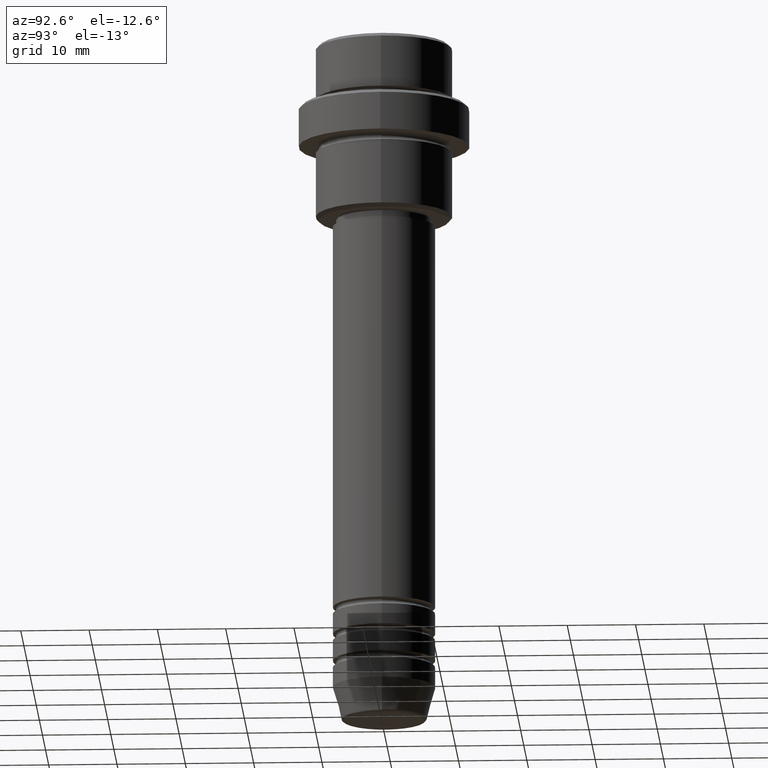
[diagram: clean part render]
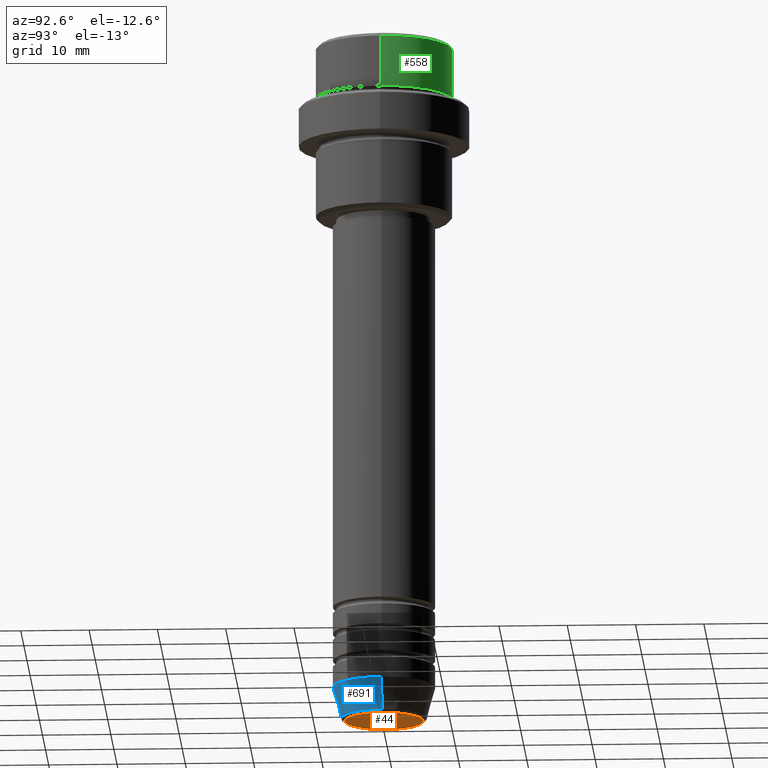
[diagram: same view with three faces highlighted in distinct colors, each labeled with its STEP entity id]
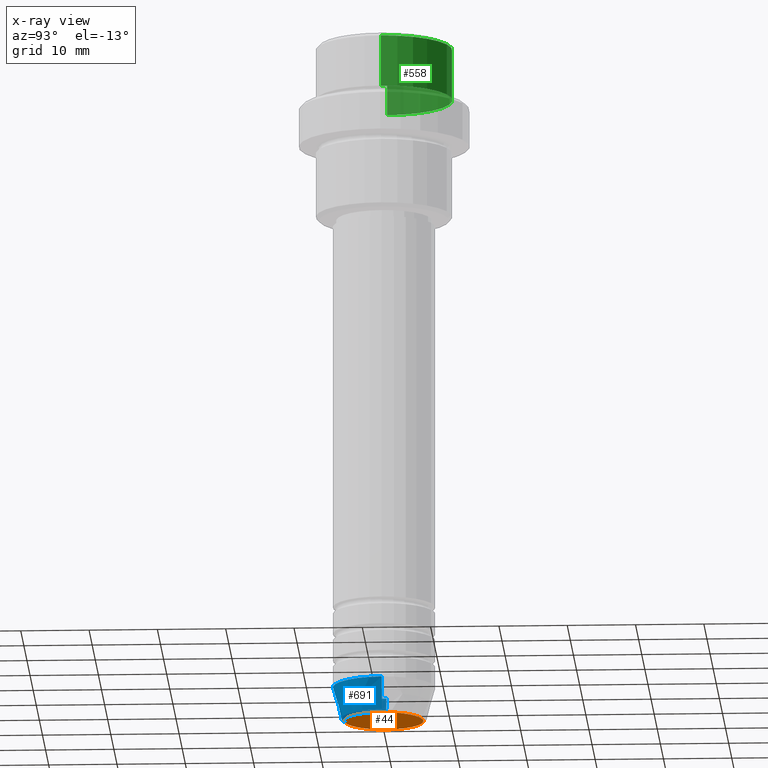
[diagram: x-ray of the same camera — body ghosted, the three highlighted faces saturated]
A machine part, auxiliary view with three faces highlighted in distinct colors.
The next image is the same camera in x-ray (body ghosted, the three faces saturated) — at least one of them is partly hidden behind the body in this view.
Their STEP definitions:

[orange] entity #44 — the highlighted planar face has unit normal (0, -0, 1).
#6 = FACE_OUTER_BOUND ( 'NONE', #1340, .T. ) ;
#44 = ADVANCED_FACE ( 'NONE', ( #6 ), #1151, .F. ) ;
#48 = CIRCLE ( 'NONE', #228, 5.776590543854901227 ) ;
#57 = DIRECTION ( 'NONE',  ( 0.000000000000000000, -0.000000000000000000, 1.000000000000000000 ) ) ;
#83 = VERTEX_POINT ( 'NONE', #1252 ) ;
#90 = AXIS2_PLACEMENT_3D ( 'NONE', #781, #564, #750 ) ;
#228 = AXIS2_PLACEMENT_3D ( 'NONE', #603, #1034, #928 ) ;
#376 = CARTESIAN_POINT ( 'NONE',  ( 0.000000000000000000, 0.000000000000000000, -101.0000000000000000 ) ) ;
#429 = AXIS2_PLACEMENT_3D ( 'NONE', #376, #57, #583 ) ;
#541 = VERTEX_POINT ( 'NONE', #581 ) ;
#564 = DIRECTION ( 'NONE',  ( 0.000000000000000000, 0.000000000000000000, -1.000000000000000000 ) ) ;
#581 = CARTESIAN_POINT ( 'NONE',  ( -5.776590543854901227, 7.370012612361440670E-16, -101.0000000000000000 ) ) ;
#583 = DIRECTION ( 'NONE',  ( 1.000000000000000000, 0.000000000000000000, 0.000000000000000000 ) ) ;
#591 = EDGE_CURVE ( 'NONE', #541, #83, #48, .T. ) ;
#603 = CARTESIAN_POINT ( 'NONE',  ( 0.000000000000000000, 0.000000000000000000, -101.0000000000000000 ) ) ;
#750 = DIRECTION ( 'NONE',  ( 1.000000000000000000, 0.000000000000000000, 0.000000000000000000 ) ) ;
#781 = CARTESIAN_POINT ( 'NONE',  ( 0.000000000000000000, 0.000000000000000000, -101.0000000000000000 ) ) ;
#883 = EDGE_CURVE ( 'NONE', #83, #541, #1255, .T. ) ;
#928 = DIRECTION ( 'NONE',  ( 1.000000000000000000, 0.000000000000000000, 0.000000000000000000 ) ) ;
#951 = ORIENTED_EDGE ( 'NONE', *, *, #591, .T. ) ;
#1034 = DIRECTION ( 'NONE',  ( 0.000000000000000000, 0.000000000000000000, -1.000000000000000000 ) ) ;
#1151 = PLANE ( 'NONE',  #429 ) ;
#1247 = ORIENTED_EDGE ( 'NONE', *, *, #883, .T. ) ;
#1252 = CARTESIAN_POINT ( 'NONE',  ( 5.776590543854901227, 0.000000000000000000, -101.0000000000000000 ) ) ;
#1255 = CIRCLE ( 'NONE', #90, 5.776590543854901227 ) ;
#1340 = EDGE_LOOP ( 'NONE', ( #1247, #951 ) ) ;

[blue] entity #691 — the highlighted conical surface has half-angle 15 deg.
#81 = CARTESIAN_POINT ( 'NONE',  ( 0.000000000000000000, 0.000000000000000000, -96.00000000000000000 ) ) ;
#119 = DIRECTION ( 'NONE',  ( 1.000000000000000000, 0.000000000000000000, 0.000000000000000000 ) ) ;
#197 = VERTEX_POINT ( 'NONE', #839 ) ;
#220 = DIRECTION ( 'NONE',  ( 1.000000000000000000, 0.000000000000000000, 0.000000000000000000 ) ) ;
#230 = DIRECTION ( 'NONE',  ( -0.2588190451025213501, 3.169619151431772337E-17, 0.9659258262890680902 ) ) ;
#242 = EDGE_CURVE ( 'NONE', #1056, #650, #859, .T. ) ;
#273 = VERTEX_POINT ( 'NONE', #635 ) ;
#275 = CIRCLE ( 'NONE', #679, 7.500000000000000000 ) ;
#316 = DIRECTION ( 'NONE',  ( 0.2588190451025213501, 0.000000000000000000, 0.9659258262890680902 ) ) ;
#393 = AXIS2_PLACEMENT_3D ( 'NONE', #432, #867, #220 ) ;
#408 = DIRECTION ( 'NONE',  ( -0.000000000000000000, -0.000000000000000000, 1.000000000000000000 ) ) ;
#432 = CARTESIAN_POINT ( 'NONE',  ( 0.000000000000000000, 0.000000000000000000, -100.6294095225512706 ) ) ;
#444 = EDGE_CURVE ( 'NONE', #197, #650, #275, .T. ) ;
#473 = ORIENTED_EDGE ( 'NONE', *, *, #444, .F. ) ;
#528 = CIRCLE ( 'NONE', #393, 6.259553456999438659 ) ;
#530 = LINE ( 'NONE', #553, #1301 ) ;
#553 = CARTESIAN_POINT ( 'NONE',  ( -7.500000000000000000, 9.184850993605147944E-16, -96.00000000000000000 ) ) ;
#612 = ORIENTED_EDGE ( 'NONE', *, *, #1190, .T. ) ;
#625 = ORIENTED_EDGE ( 'NONE', *, *, #747, .F. ) ;
#635 = CARTESIAN_POINT ( 'NONE',  ( -6.259553456999439547, 8.425296549405630472E-16, -100.6294095225512706 ) ) ;
#650 = VERTEX_POINT ( 'NONE', #937 ) ;
#652 = CARTESIAN_POINT ( 'NONE',  ( 0.000000000000000000, 0.000000000000000000, -96.00000000000000000 ) ) ;
#679 = AXIS2_PLACEMENT_3D ( 'NONE', #652, #1198, #119 ) ;
#691 = ADVANCED_FACE ( 'NONE', ( #1053 ), #977, .T. ) ;
#747 = EDGE_CURVE ( 'NONE', #273, #197, #530, .T. ) ;
#755 = EDGE_LOOP ( 'NONE', ( #625, #612, #1402, #473 ) ) ;
#839 = CARTESIAN_POINT ( 'NONE',  ( -7.500000000000000000, 9.184850993605147944E-16, -96.00000000000000000 ) ) ;
#847 = AXIS2_PLACEMENT_3D ( 'NONE', #81, #408, #1283 ) ;
#859 = LINE ( 'NONE', #944, #931 ) ;
#867 = DIRECTION ( 'NONE',  ( -0.000000000000000000, -0.000000000000000000, 1.000000000000000000 ) ) ;
#931 = VECTOR ( 'NONE', #316, 1000.000000000000000 ) ;
#937 = CARTESIAN_POINT ( 'NONE',  ( 7.500000000000000000, 0.000000000000000000, -96.00000000000000000 ) ) ;
#944 = CARTESIAN_POINT ( 'NONE',  ( 7.500000000000000000, 0.000000000000000000, -96.00000000000000000 ) ) ;
#977 = CONICAL_SURFACE ( 'NONE', #847, 7.500000000000000000, 0.2617993877991500740 ) ;
#1053 = FACE_OUTER_BOUND ( 'NONE', #755, .T. ) ;
#1056 = VERTEX_POINT ( 'NONE', #1307 ) ;
#1190 = EDGE_CURVE ( 'NONE', #273, #1056, #528, .T. ) ;
#1198 = DIRECTION ( 'NONE',  ( -0.000000000000000000, -0.000000000000000000, 1.000000000000000000 ) ) ;
#1283 = DIRECTION ( 'NONE',  ( 1.000000000000000000, 0.000000000000000000, 0.000000000000000000 ) ) ;
#1301 = VECTOR ( 'NONE', #230, 1000.000000000000000 ) ;
#1307 = CARTESIAN_POINT ( 'NONE',  ( 6.259553456999438659, 0.000000000000000000, -100.6294095225512706 ) ) ;
#1402 = ORIENTED_EDGE ( 'NONE', *, *, #242, .T. ) ;

[green] entity #558 — the highlighted cylindrical surface (partial cylindrical patch) has radius 10 mm, axis along (-0, -0, 1).
#2 = DIRECTION ( 'NONE',  ( 1.000000000000000000, 0.000000000000000000, 0.000000000000000000 ) ) ;
#4 = VECTOR ( 'NONE', #485, 1000.000000000000000 ) ;
#61 = FACE_OUTER_BOUND ( 'NONE', #868, .T. ) ;
#78 = LINE ( 'NONE', #518, #1135 ) ;
#97 = VERTEX_POINT ( 'NONE', #599 ) ;
#109 = EDGE_CURVE ( 'NONE', #851, #515, #1348, .T. ) ;
#123 = DIRECTION ( 'NONE',  ( 0.000000000000000000, 0.000000000000000000, -1.000000000000000000 ) ) ;
#140 = DIRECTION ( 'NONE',  ( 1.000000000000000000, 0.000000000000000000, 0.000000000000000000 ) ) ;
#177 = CARTESIAN_POINT ( 'NONE',  ( 0.000000000000000000, 0.000000000000000000, -7.999999999999998224 ) ) ;
#198 = EDGE_CURVE ( 'NONE', #515, #492, #78, .T. ) ;
#310 = ORIENTED_EDGE ( 'NONE', *, *, #843, .T. ) ;
#369 = AXIS2_PLACEMENT_3D ( 'NONE', #494, #1364, #140 ) ;
#387 = DIRECTION ( 'NONE',  ( 1.000000000000000000, 0.000000000000000000, 0.000000000000000000 ) ) ;
#427 = CARTESIAN_POINT ( 'NONE',  ( 0.000000000000000000, 0.000000000000000000, -0.4999999999999970024 ) ) ;
#449 = ORIENTED_EDGE ( 'NONE', *, *, #109, .T. ) ;
#483 = CARTESIAN_POINT ( 'NONE',  ( -9.999999999999998224, 1.224646799147353059E-15, -0.4999999999999970024 ) ) ;
#485 = DIRECTION ( 'NONE',  ( -0.000000000000000000, -0.000000000000000000, 1.000000000000000000 ) ) ;
#486 = DIRECTION ( 'NONE',  ( -0.000000000000000000, -0.000000000000000000, 1.000000000000000000 ) ) ;
#492 = VERTEX_POINT ( 'NONE', #483 ) ;
#494 = CARTESIAN_POINT ( 'NONE',  ( 0.000000000000000000, 0.000000000000000000, 0.000000000000000000 ) ) ;
#515 = VERTEX_POINT ( 'NONE', #1119 ) ;
#518 = CARTESIAN_POINT ( 'NONE',  ( -9.999999999999998224, 1.224646799147353059E-15, 0.000000000000000000 ) ) ;
#526 = AXIS2_PLACEMENT_3D ( 'NONE', #427, #123, #2 ) ;
#558 = ADVANCED_FACE ( 'NONE', ( #61 ), #1020, .T. ) ;
#559 = CARTESIAN_POINT ( 'NONE',  ( 9.999999999999998224, 0.000000000000000000, -7.999999999999998224 ) ) ;
#599 = CARTESIAN_POINT ( 'NONE',  ( 9.999999999999998224, 0.000000000000000000, -0.4999999999999970024 ) ) ;
#624 = DIRECTION ( 'NONE',  ( -0.000000000000000000, -0.000000000000000000, 1.000000000000000000 ) ) ;
#778 = CIRCLE ( 'NONE', #526, 9.999999999999998224 ) ;
#796 = CARTESIAN_POINT ( 'NONE',  ( 9.999999999999998224, 0.000000000000000000, 0.000000000000000000 ) ) ;
#843 = EDGE_CURVE ( 'NONE', #492, #97, #778, .T. ) ;
#851 = VERTEX_POINT ( 'NONE', #559 ) ;
#868 = EDGE_LOOP ( 'NONE', ( #449, #910, #310, #947 ) ) ;
#910 = ORIENTED_EDGE ( 'NONE', *, *, #198, .T. ) ;
#947 = ORIENTED_EDGE ( 'NONE', *, *, #1404, .F. ) ;
#1020 = CYLINDRICAL_SURFACE ( 'NONE', #369, 9.999999999999998224 ) ;
#1119 = CARTESIAN_POINT ( 'NONE',  ( -9.999999999999998224, 1.224646799147353059E-15, -7.999999999999998224 ) ) ;
#1135 = VECTOR ( 'NONE', #624, 1000.000000000000000 ) ;
#1203 = AXIS2_PLACEMENT_3D ( 'NONE', #177, #486, #387 ) ;
#1250 = LINE ( 'NONE', #796, #4 ) ;
#1348 = CIRCLE ( 'NONE', #1203, 9.999999999999998224 ) ;
#1364 = DIRECTION ( 'NONE',  ( -0.000000000000000000, -0.000000000000000000, 1.000000000000000000 ) ) ;
#1404 = EDGE_CURVE ( 'NONE', #851, #97, #1250, .T. ) ;